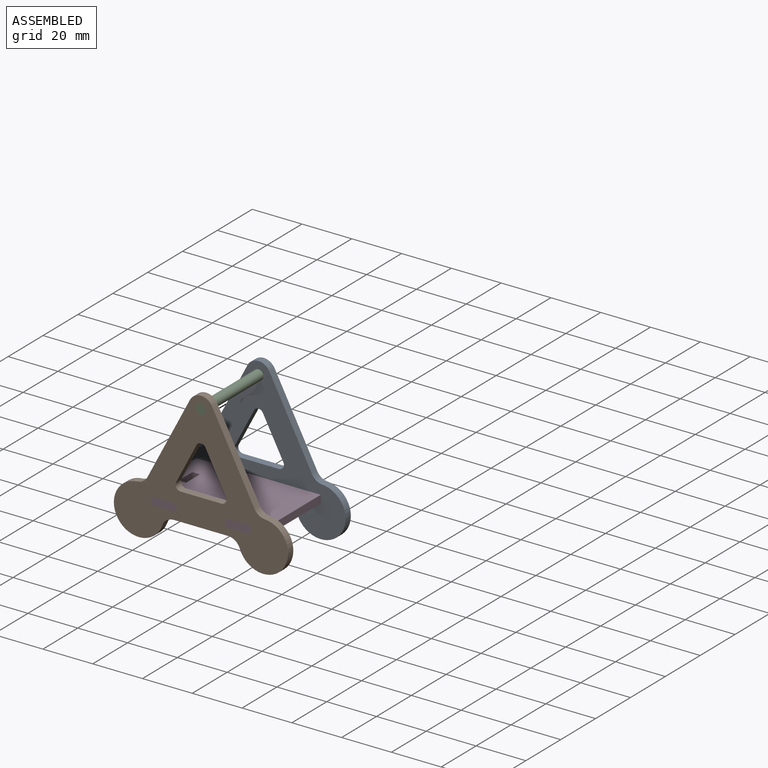
[diagram: assembled view]
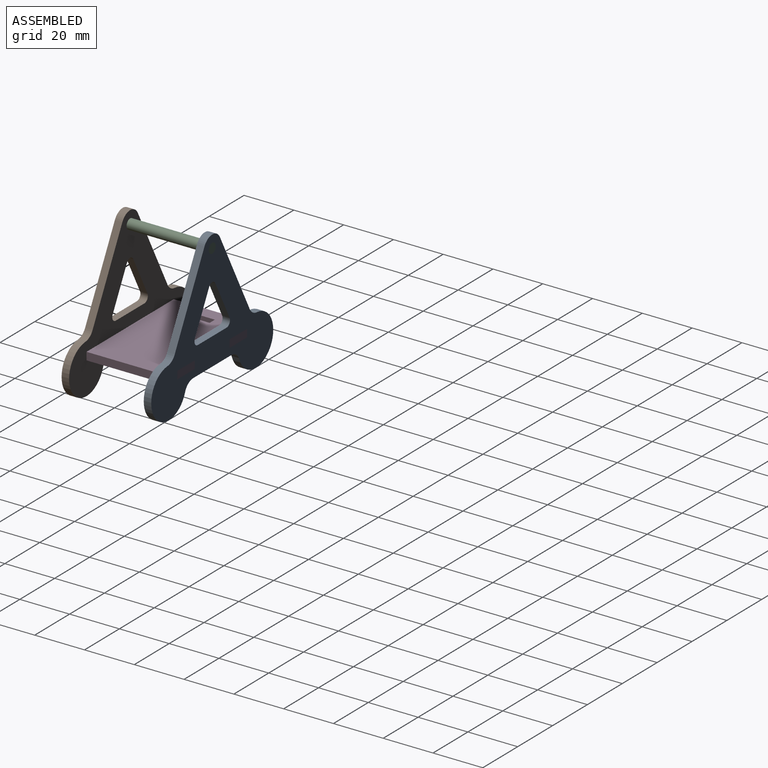
[diagram: assembled view, second angle]
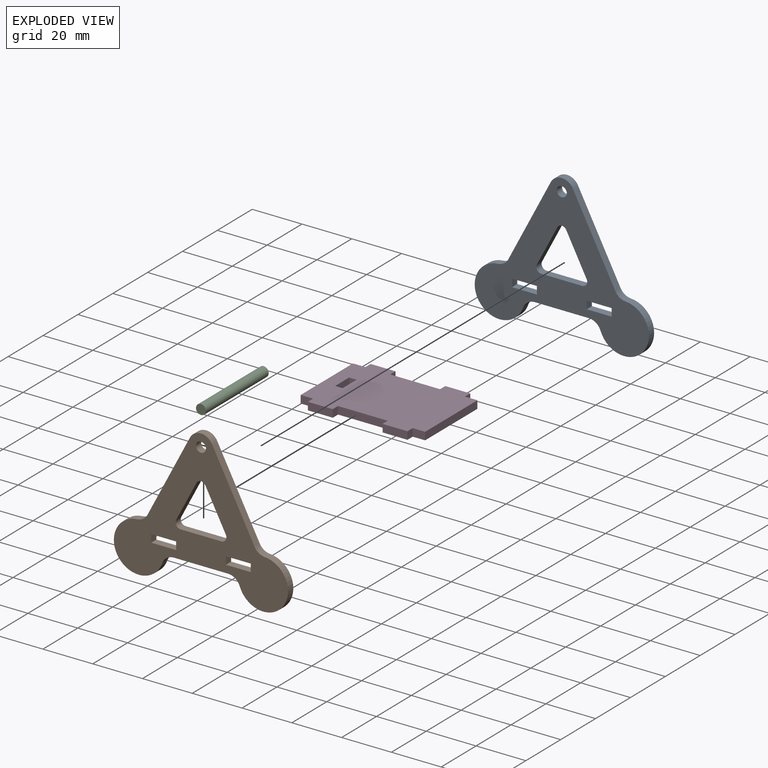
[diagram: exploded view]
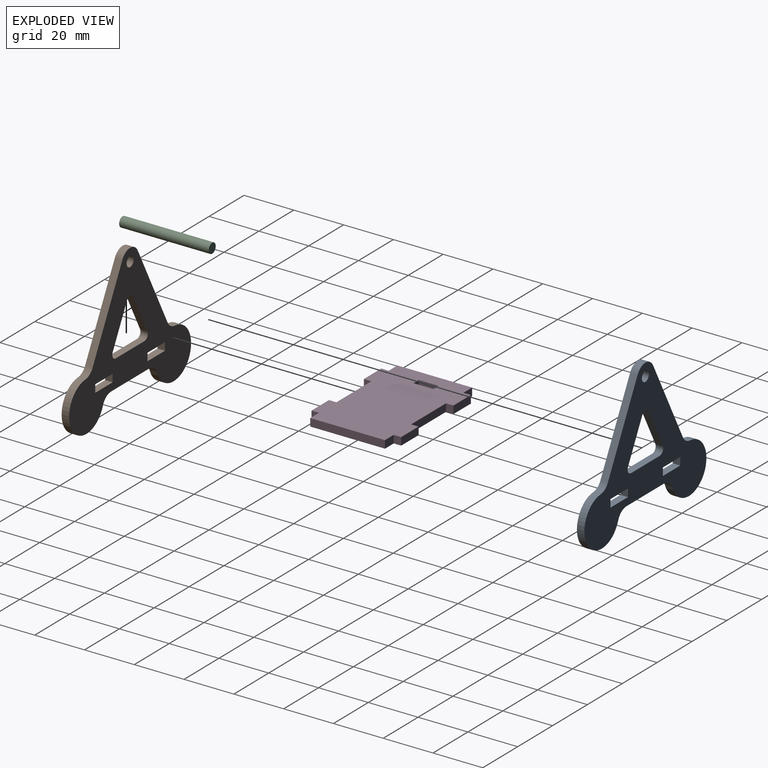
[diagram: exploded view, second angle]
ASSEMBLY  parts=4 mates=3
PART A: 27 faces, bbox 70x58x3 mm
  f0: cylinder r=2mm len=3.54mm, axis (0,0,1), area 13.1mm2, adj f1,f3,f25,f26
  f1: plane 15.69x8.21mm, normal (-0.89,-0.46,0), area 53.1mm2, adj f0,f4,f25,f26
  f2: cylinder r=2mm len=3mm, axis (0,0,1), area 12.3mm2, adj f3,f5,f25,f26
  f3: plane 15.69x8.21mm, normal (0.89,-0.46,0), area 53.1mm2, adj f0,f2,f25,f26
  f4: cylinder r=2mm len=3mm, axis (0,0,1), area 12.3mm2, adj f1,f5,f25,f26
  f5: plane 16.41x3mm, normal (0,1,0), area 49.2mm2, adj f2,f4,f25,f26
  f6: cylinder r=5mm len=4.11mm, axis (0,0,1), area 15.4mm2, adj f7,f23,f25,f26
  f7: cylinder r=10mm len=19.98mm, axis (0,0,1), area 129.3mm2, adj f6,f12,f25,f26
  f8: cylinder r=5mm len=4.11mm, axis (0,0,1), area 15.4mm2, adj f9,f11,f25,f26
  f9: plane 32.67x17.09mm, normal (0.89,0.46,0), area 110.6mm2, adj f8,f24,f25,f26
  f10: cylinder r=5mm len=4.71mm, axis (0,0,1), area 18.5mm2, adj f11,f13,f25,f26
  f11: cylinder r=10mm len=19.98mm, axis (0,0,1), area 129.3mm2, adj f8,f10,f25,f26
  f12: cylinder r=5mm len=4.71mm, axis (0,0,1), area 18.5mm2, adj f7,f13,f25,f26
  f13: plane 21.72x3mm, normal (0,-1,0), area 65.1mm2, adj f10,f12,f25,f26
  f14: cylinder r=2mm len=4mm, axis (0,0,1), area 37.7mm2, adj f25,f26
  f15: plane 3.1x3mm, normal (1,0,0), area 9.3mm2, adj f16,f18,f25,f26
  f16: plane 10x3mm, normal (0,1,0), area 30mm2, adj f15,f17,f25,f26
  f17: plane 3.1x3mm, normal (-1,0,0), area 9.3mm2, adj f16,f18,f25,f26
  f18: plane 10x3mm, normal (0,-1,0), area 30mm2, adj f15,f17,f25,f26
  f19: plane 3.1x3mm, normal (1,0,0), area 9.3mm2, adj f20,f22,f25,f26
  f20: plane 10x3mm, normal (0,1,0), area 30mm2, adj f19,f21,f25,f26
  f21: plane 3.1x3mm, normal (-1,0,0), area 9.3mm2, adj f20,f22,f25,f26
  f22: plane 10x3mm, normal (0,-1,0), area 30mm2, adj f19,f21,f25,f26
  f23: plane 32.67x17.09mm, normal (-0.89,0.46,0), area 110.6mm2, adj f6,f24,f25,f26
  f24: cylinder r=5mm len=8.86mm, axis (0,0,1), area 32.7mm2, adj f9,f23,f25,f26
  f25: plane 70x58mm, normal (0,0,1), area 1643.1mm2, adj f0,f1,f2,f3,f4,f5,f6,f7
  f26: plane 70x58mm, normal (0,0,-1), area 1643.1mm2, adj f0,f1,f2,f3,f4,f5,f6,f7
PART B: same geometry as A
PART C: 3 faces, bbox 4x4x36 mm
  f0: plane 4x4mm, normal (0,0,1), area 12.6mm2, adj f1
  f1: cylinder r=2mm len=36mm, axis (0,0,-1), area 452.4mm2, adj f0,f2
  f2: plane 4x4mm, normal (0,0,-1), area 12.6mm2, adj f1
PART D: 26 faces, bbox 50x3.1x36 mm
  f0: plane 8x3.1mm, normal (1,0,0), area 24.8mm2, adj f1,f3,f24,f25
  f1: plane 3.1x3mm, normal (0,0,1), area 9.3mm2, adj f0,f2,f24,f25
  f2: plane 8x3.1mm, normal (-1,0,0), area 24.8mm2, adj f1,f3,f24,f25
  f3: plane 3.1x3mm, normal (0,0,-1), area 9.3mm2, adj f0,f2,f24,f25
  f4: plane 3.1x3mm, normal (1,0,0), area 9.3mm2, adj f5,f23,f24,f25
  f5: plane 10x3.1mm, normal (0,0,1), area 31mm2, adj f4,f6,f24,f25
  f6: plane 3.1x3mm, normal (-1,0,0), area 9.3mm2, adj f5,f7,f24,f25
  f7: plane 5x3.1mm, normal (0,0,1), area 15.5mm2, adj f6,f8,f24,f25
  f8: plane 30x3.1mm, normal (-1,0,0), area 93mm2, adj f7,f9,f24,f25
  f9: plane 5x3.1mm, normal (0,0,-1), area 15.5mm2, adj f8,f10,f24,f25
  f10: plane 3.1x3mm, normal (-1,0,0), area 9.3mm2, adj f9,f11,f24,f25
  f11: plane 10x3.1mm, normal (0,0,-1), area 31mm2, adj f10,f12,f24,f25
  f12: plane 3.1x3mm, normal (1,0,0), area 9.3mm2, adj f11,f13,f24,f25
  f13: plane 20x3.1mm, normal (0,0,-1), area 62mm2, adj f12,f14,f24,f25
  f14: plane 3.1x3mm, normal (-1,0,0), area 9.3mm2, adj f13,f15,f24,f25
  f15: plane 10x3.1mm, normal (0,0,-1), area 31mm2, adj f14,f16,f24,f25
  f16: plane 3.1x3mm, normal (1,0,0), area 9.3mm2, adj f15,f17,f24,f25
  f17: plane 5x3.1mm, normal (0,0,-1), area 15.5mm2, adj f16,f18,f24,f25
  f18: plane 30x3.1mm, normal (1,0,0), area 93mm2, adj f17,f19,f24,f25
  f19: plane 5x3.1mm, normal (0,0,1), area 15.5mm2, adj f18,f20,f24,f25
  f20: plane 3.1x3mm, normal (1,0,0), area 9.3mm2, adj f19,f21,f24,f25
  f21: plane 10x3.1mm, normal (0,0,1), area 31mm2, adj f20,f22,f24,f25
  f22: plane 3.1x3mm, normal (-1,0,0), area 9.3mm2, adj f21,f23,f24,f25
  f23: plane 20x3.1mm, normal (0,0,1), area 62mm2, adj f4,f22,f24,f25
  f24: plane 50x36mm, normal (0,1,0), area 1596mm2, adj f0,f1,f2,f3,f4,f5,f6,f7
  f25: plane 50x36mm, normal (0,-1,0), area 1596mm2, adj f0,f1,f2,f3,f4,f5,f6,f7
PLACE A rot(axis=(1,0,0),90deg) t=(-0.54,33.91,0.62)mm
PLACE B rot(axis=(1,0,0),90deg) t=(-0.54,0.91,0.62)mm
PLACE C rot(axis=(1,0,0),90deg) t=(-0.54,-7.09,0.62)mm
PLACE D rot(axis=(1,0,0),90deg) t=(-0.54,0.91,0.62)mm fixed
MATE fastened D.f15 <-> A.f26  axis (0,1,0) through (19.46,18.91,3.72)mm
MATE fastened C.f1 <-> B.f14  axis (0,-1,0) through (-0.54,-17.09,40.62)mm
MATE fastened B.f25 <-> D.f21  axis (0,-1,0) through (9.46,-17.09,3.72)mm
